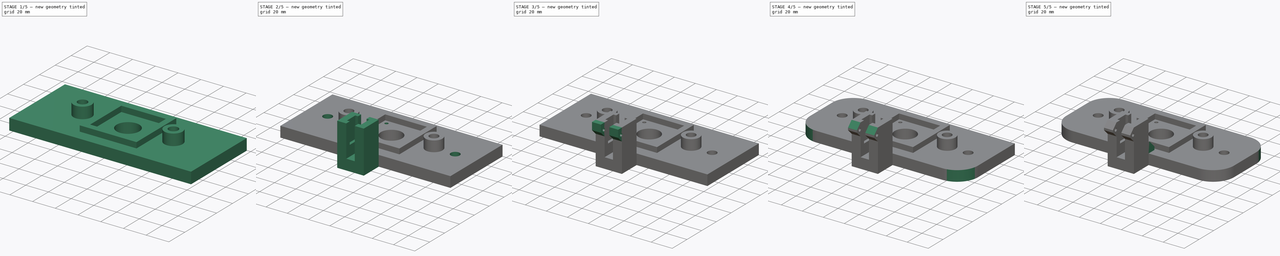
[diagram: build sequence overview — one tinted view per stage of 5, left to right]
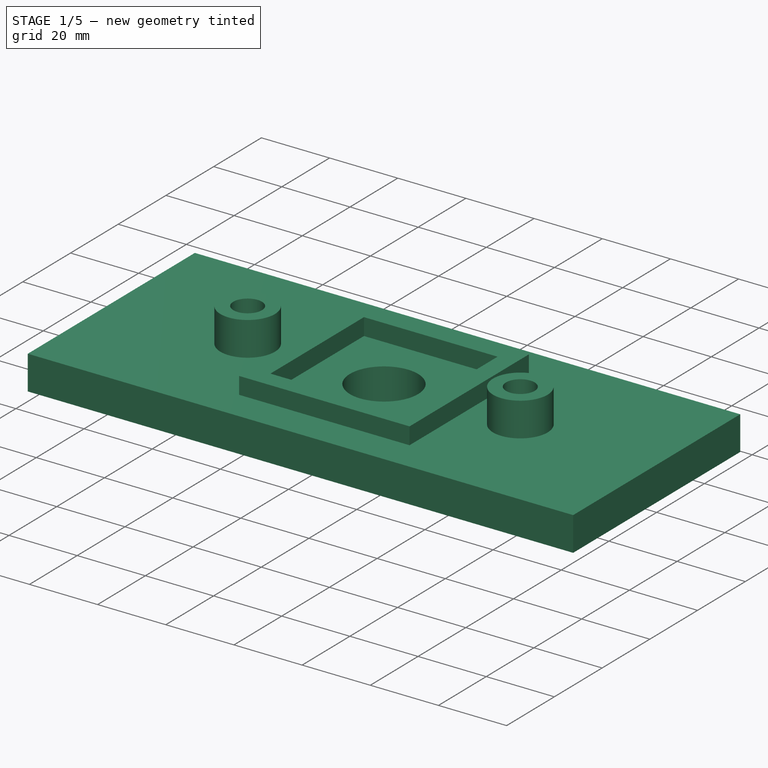
[diagram: stage 1 of 5 — iso view after this stage's code; geometry added in this stage tinted green]
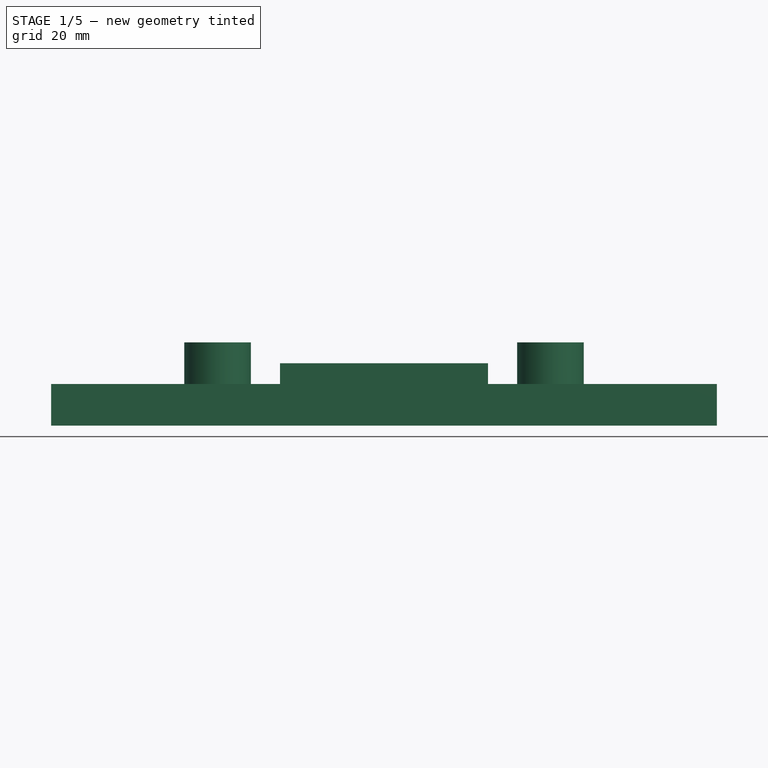
[diagram: stage 1 of 5 — front view after this stage's code; geometry added in this stage tinted green]
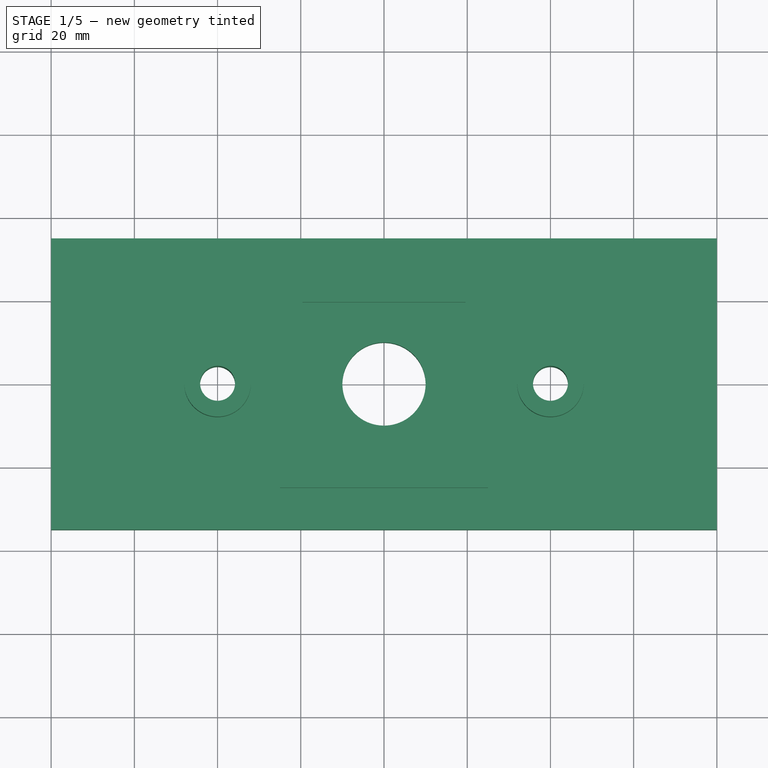
[diagram: stage 1 of 5 — top view after this stage's code; geometry added in this stage tinted green]
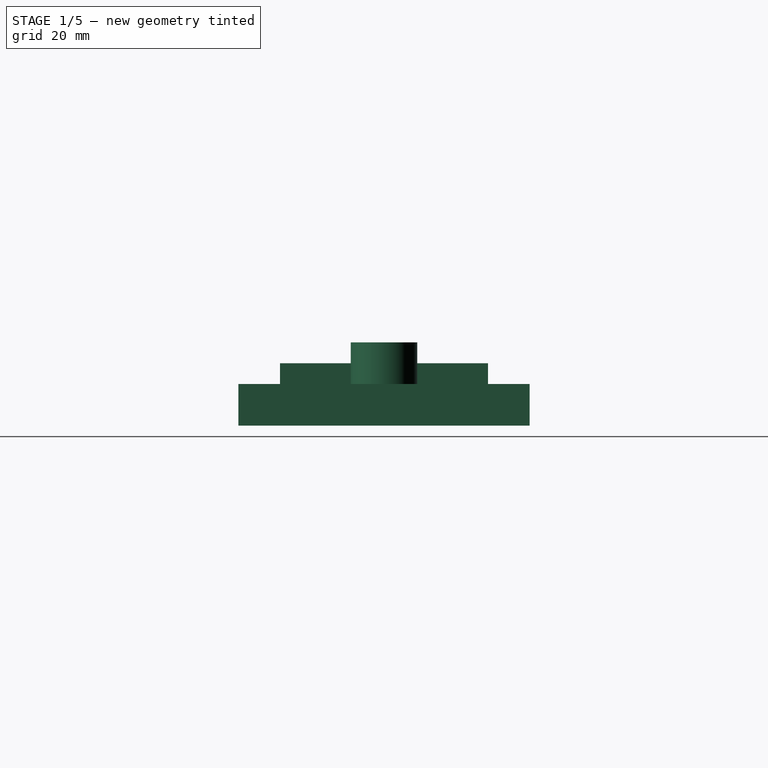
[diagram: stage 1 of 5 — right view after this stage's code; geometry added in this stage tinted green]
FCSTD DOCUMENT  (FreeCAD 0.18R16117 (Git))
Label: TCM2 - SuppMotore
License: All rights reserved
LicenseURL: http://en.wikipedia.org/wiki/All_rights_reserved
objects: Sketcher::SketchObject×14, PartDesign::Pad×7, PartDesign::Pocket×7, PartDesign::Chamfer×6, PartDesign::Fillet×4, PartDesign::Body×1
note: 53 computed .brp shape members not serialized (recipe doc carries the construction recipe); baked Part::Feature solids carry a one-line shape summary decoded from their .brp

FEATURE [Sketcher::SketchObject] Sketch
  MapMode = 5
  Support = -> [XY_Plane]
  sketch-geometry (4):
    g0: LineSegment StartX=-80 StartY=35 StartZ=0 EndX=80 EndY=35 EndZ=0
    g1: LineSegment StartX=80 StartY=35 StartZ=0 EndX=80 EndY=-35 EndZ=0
    g2: LineSegment StartX=80 StartY=-35 StartZ=0 EndX=-80 EndY=-35 EndZ=0
    g3: LineSegment StartX=-80 StartY=-35 StartZ=0 EndX=-80 EndY=35 EndZ=0
  constraints (12):
    c: Coincident(g0,g1)
    c: Coincident(g1,g2)
    c: Coincident(g2,g3)
    c: Coincident(g3,g0)
    c: Horizontal(g0)
    c: Horizontal(g2)
    c: Vertical(g1)
    c: Vertical(g3)
    c: Distance(g1) = 70
    c: Distance(g0) = 160
    c: DistanceX(g-1,g0) = 80
    c: DistanceY(g-1,g0) = 35
FEATURE [PartDesign::Pad] Pad
  Length = 10
  Length2 = 100
  Profile = -> Sketch
  Type = 0
FEATURE [Sketcher::SketchObject] Sketch001
  MapMode = 5
  Placement = pos=(0,0,10) rot=(0,0,1;0rad)
  Support = -> [Pad]
  sketch-geometry (1):
    g0: Circle CenterX=0 CenterY=0 CenterZ=0 NormalX=0 NormalY=0 NormalZ=1 AngleXU=0 Radius=10
  constraints (2):
    c: Coincident(g0,g-1)
    c: Radius(g0) = 10
FEATURE [PartDesign::Pocket] Pocket
  BaseFeature = -> Pad
  Length = 10
  Length2 = 100
  Profile = -> Sketch001
  Type = 0
FEATURE [Sketcher::SketchObject] Sketch002
  MapMode = 5
  Placement = pos=(0,0,10) rot=(0,0,1;0rad)
  Support = -> [Pocket]
  sketch-geometry (2):
    g0: Circle CenterX=-40 CenterY=0 CenterZ=0 NormalX=0 NormalY=0 NormalZ=1 AngleXU=0 Radius=8
    g1: Circle CenterX=40 CenterY=0 CenterZ=0 NormalX=0 NormalY=0 NormalZ=1 AngleXU=0 Radius=8
  constraints (6):
    c: PointOnObject(g1,g-1)
    c: PointOnObject(g0,g-1)
    c: Radius(g1) = 8
    c: Radius(g0) = 8
    c: DistanceX(g0,g-1) = 40
    c: DistanceX(g-1,g1) = 40
FEATURE [PartDesign::Pad] Pad001
  BaseFeature = -> Pocket
  Length = 10
  Length2 = 100
  Profile = -> Sketch002
  Type = 0
FEATURE [Sketcher::SketchObject] Sketch003
  MapMode = 5
  Placement = pos=(0,0,20) rot=(0,0,1;0rad)
  Support = -> [Pad001]
  sketch-geometry (2):
    g0: Circle CenterX=-40 CenterY=0 CenterZ=0 NormalX=0 NormalY=0 NormalZ=1 AngleXU=0 Radius=4.2
    g1: Circle CenterX=40 CenterY=0 CenterZ=0 NormalX=0 NormalY=0 NormalZ=1 AngleXU=0 Radius=4.2
  constraints (6):
    c: PointOnObject(g1,g-1)
    c: PointOnObject(g0,g-1)
    c: Radius(g0) = 4.2
    c: Radius(g1) = 4.2
    c: DistanceX(g0,g-1) = 40
    c: DistanceX(g-1,g1) = 40
FEATURE [PartDesign::Pocket] Pocket001
  BaseFeature = -> Pad001
  Length = 20
  Length2 = 100
  Profile = -> Sketch003
  Type = 0
FEATURE [Sketcher::SketchObject] Sketch004
  MapMode = 5
  Placement = pos=(0,0,10) rot=(0,0,1;0rad)
  Support = -> [Pocket001]
  sketch-geometry (8):
    g0: LineSegment StartX=-25 StartY=25 StartZ=0 EndX=25 EndY=25 EndZ=0
    g1: LineSegment StartX=25 StartY=25 StartZ=0 EndX=25 EndY=-25 EndZ=0
    g2: LineSegment StartX=25 StartY=-25 StartZ=0 EndX=-25 EndY=-25 EndZ=0
    g3: LineSegment StartX=-25 StartY=-25 StartZ=0 EndX=-25 EndY=25 EndZ=0
    g4: LineSegment StartX=-19.6 StartY=19.6 StartZ=0 EndX=19.6 EndY=19.6 EndZ=0
    g5: LineSegment StartX=19.6 StartY=19.6 StartZ=0 EndX=19.6 EndY=-19.6 EndZ=0
    g6: LineSegment StartX=19.6 StartY=-19.6 StartZ=0 EndX=-19.6 EndY=-19.6 EndZ=0
    g7: LineSegment StartX=-19.6 StartY=-19.6 StartZ=0 EndX=-19.6 EndY=19.6 EndZ=0
  constraints (24):
    c: Coincident(g0,g1)
    c: Coincident(g1,g2)
    c: Coincident(g2,g3)
    c: Coincident(g3,g0)
    c: Horizontal(g0)
    c: Horizontal(g2)
    c: Vertical(g1)
    c: Vertical(g3)
    c: Distance(g1) = 50
    c: Distance(g0) = 50
    c: DistanceX(g-1,g0) = 25
    c: DistanceY(g-1,g0) = 25
    c: Coincident(g4,g5)
    c: Coincident(g5,g6)
    c: Coincident(g6,g7)
    c: Coincident(g7,g4)
    c: Horizontal(g4)
    c: Horizontal(g6)
    c: Vertical(g5)
    c: Vertical(g7)
    c: Distance(g4) = 39.2
    c: Distance(g5) = 39.2
    c: DistanceX(g6,g-1) = 19.6
    c: DistanceY(g-1,g4) = 19.6
FEATURE [PartDesign::Pad] Pad002
  BaseFeature = -> Pocket001
  Length = 5
  Length2 = 100
  Profile = -> Sketch004
  Type = 0
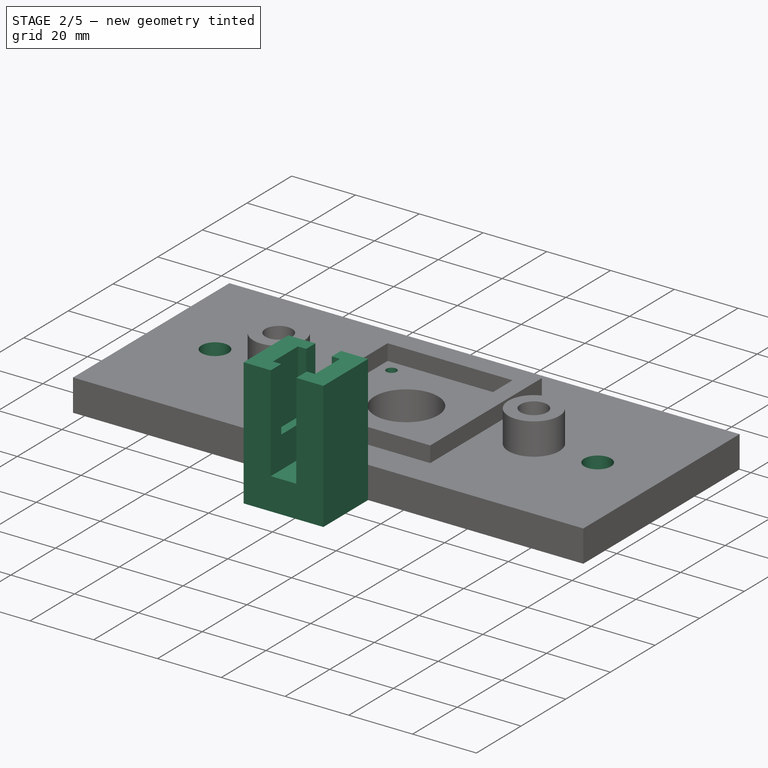
[diagram: stage 2 of 5 — iso view after this stage's code; geometry added in this stage tinted green]
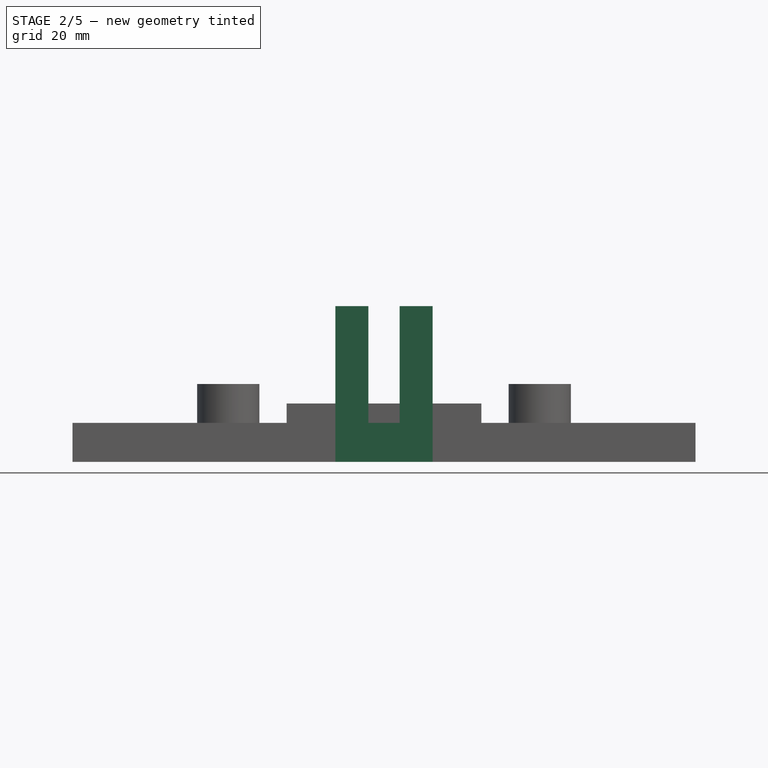
[diagram: stage 2 of 5 — front view after this stage's code; geometry added in this stage tinted green]
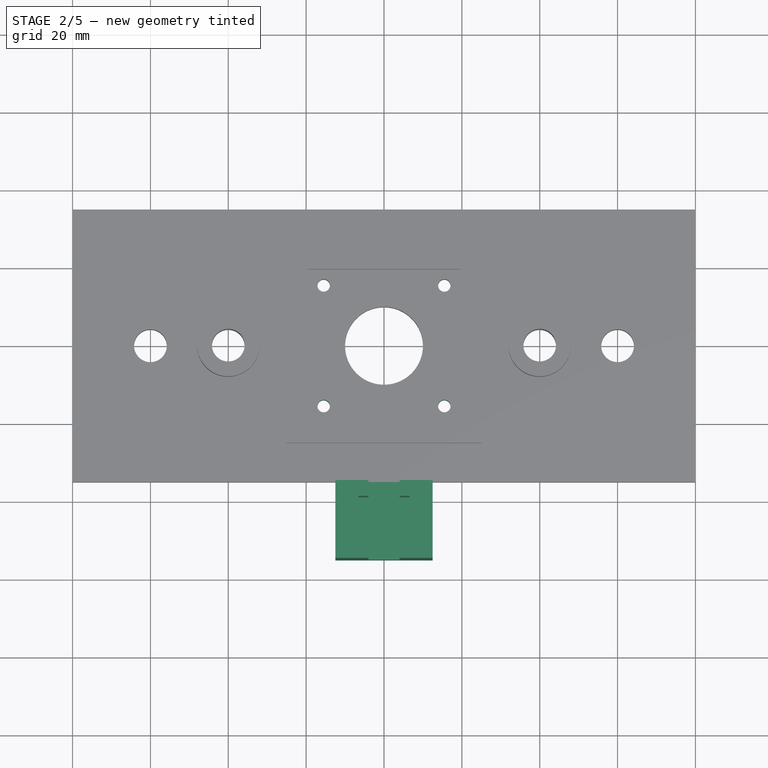
[diagram: stage 2 of 5 — top view after this stage's code; geometry added in this stage tinted green]
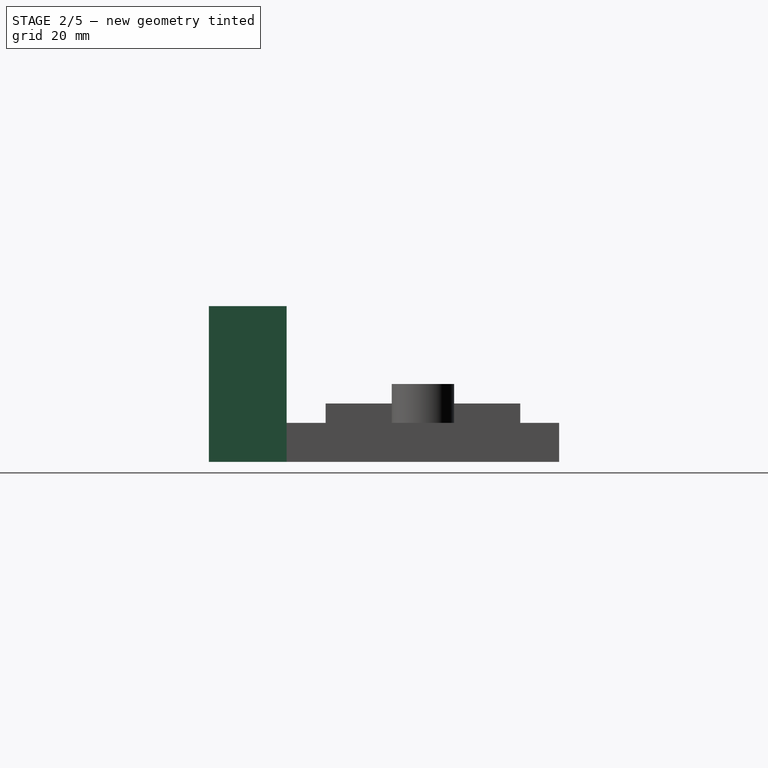
[diagram: stage 2 of 5 — right view after this stage's code; geometry added in this stage tinted green]
FEATURE [Sketcher::SketchObject] Sketch005
  MapMode = 5
  Placement = pos=(0,0,10) rot=(0,0,1;0rad)
  Support = -> [Pad002]
  sketch-geometry (4):
    g0: Circle CenterX=-15.5 CenterY=15.5 CenterZ=0 NormalX=0 NormalY=0 NormalZ=1 AngleXU=0 Radius=1.6
    g1: Circle CenterX=15.5 CenterY=15.5 CenterZ=0 NormalX=0 NormalY=0 NormalZ=1 AngleXU=0 Radius=1.6
    g2: Circle CenterX=-15.5 CenterY=-15.5 CenterZ=0 NormalX=0 NormalY=0 NormalZ=1 AngleXU=0 Radius=1.6
    g3: Circle CenterX=15.5 CenterY=-15.5 CenterZ=0 NormalX=0 NormalY=0 NormalZ=1 AngleXU=0 Radius=1.6
  constraints (12):
    c: Radius(g1) = 1.6
    c: Radius(g3) = 1.6
    c: Radius(g2) = 1.6
    c: Radius(g0) = 1.6
    c: DistanceY(g3,g1) = 31
    c: DistanceY(g2,g0) = 31
    c: DistanceX(g0,g1) = 31
    c: DistanceX(g2,g3) = 31
    c: DistanceY(g-1,g1) = 15.5
    c: DistanceY(g-1,g0) = 15.5
    c: DistanceX(g-1,g1) = 15.5
    c: DistanceX(g-1,g3) = 15.5
FEATURE [PartDesign::Pocket] Pocket002
  BaseFeature = -> Pad002
  Length = 10
  Length2 = 100
  Profile = -> Sketch005
  Type = 0
FEATURE [Sketcher::SketchObject] Sketch006
  MapMode = 5
  Placement = pos=(0,0,10) rot=(0,0,1;0rad)
  Support = -> [Pocket002]
  sketch-geometry (2):
    g0: Circle CenterX=-60 CenterY=0 CenterZ=0 NormalX=0 NormalY=0 NormalZ=1 AngleXU=0 Radius=4.2
    g1: Circle CenterX=60 CenterY=0 CenterZ=0 NormalX=0 NormalY=0 NormalZ=1 AngleXU=0 Radius=4.2
  constraints (6):
    c: PointOnObject(g1,g-1)
    c: PointOnObject(g0,g-1)
    c: Radius(g0) = 4.2
    c: Radius(g1) = 4.2
    c: DistanceX(g0,g-1) = 60
    c: DistanceX(g-1,g1) = 60
FEATURE [PartDesign::Pocket] Pocket003
  BaseFeature = -> Pocket002
  Length = 10
  Length2 = 100
  Profile = -> Sketch006
  Type = 0
FEATURE [Sketcher::SketchObject] Sketch007
  MapMode = 5
  Placement = pos=(0,0,0) rot=(1,0,0;3.14159rad)
  Support = -> [Pocket003]
  sketch-geometry (4):
    g0: LineSegment StartX=-12.5 StartY=35 StartZ=0 EndX=12.5 EndY=35 EndZ=0
    g1: LineSegment StartX=12.5 StartY=35 StartZ=0 EndX=12.5 EndY=55 EndZ=0
    g2: LineSegment StartX=12.5 StartY=55 StartZ=0 EndX=-12.5 EndY=55 EndZ=0
    g3: LineSegment StartX=-12.5 StartY=55 StartZ=0 EndX=-12.5 EndY=35 EndZ=0
  constraints (12):
    c: Coincident(g0,g1)
    c: Coincident(g1,g2)
    c: Coincident(g2,g3)
    c: Coincident(g3,g0)
    c: Horizontal(g0)
    c: Horizontal(g2)
    c: Vertical(g1)
    c: Vertical(g3)
    c: Distance(g1) = 20
    c: Distance(g0) = 25
    c: DistanceX(g0,g-1) = 12.5
    c: DistanceY(g-1,g0) = 35
FEATURE [PartDesign::Pad] Pad003
  BaseFeature = -> Pocket003
  Length = 40
  Length2 = 100
  Profile = -> Sketch007
  Reversed = true
  Type = 0
FEATURE [Sketcher::SketchObject] Sketch008
  MapMode = 5
  Placement = pos=(0,0,40) rot=(0,0,1;0rad)
  Support = -> [Pad003]
  sketch-geometry (4):
    g0: LineSegment StartX=-4 StartY=-35 StartZ=0 EndX=4 EndY=-35 EndZ=0
    g1: LineSegment StartX=4 StartY=-35 StartZ=0 EndX=4 EndY=-55 EndZ=0
    g2: LineSegment StartX=4 StartY=-55 StartZ=0 EndX=-4 EndY=-55 EndZ=0
    g3: LineSegment StartX=-4 StartY=-55 StartZ=0 EndX=-4 EndY=-35 EndZ=0
  constraints (12):
    c: Coincident(g0,g1)
    c: Coincident(g1,g2)
    c: Coincident(g2,g3)
    c: Coincident(g3,g0)
    c: Horizontal(g0)
    c: Horizontal(g2)
    c: Vertical(g1)
    c: Vertical(g3)
    c: Distance(g1) = 20
    c: Distance(g0) = 8
    c: DistanceX(g0,g-1) = 4
    c: DistanceY(g0,g-1) = 35
FEATURE [PartDesign::Pocket] Pocket004
  BaseFeature = -> Pad003
  Length = 30
  Length2 = 100
  Profile = -> Sketch008
  Type = 0
FEATURE [Sketcher::SketchObject] Sketch009
  MapMode = 5
  Placement = pos=(0,0,40) rot=(0,0,1;0rad)
  Support = -> [Pocket004]
  sketch-geometry (4):
    g0: LineSegment StartX=-6.6 StartY=-39.1 StartZ=0 EndX=6.6 EndY=-39.1 EndZ=0
    g1: LineSegment StartX=6.6 StartY=-39.1 StartZ=0 EndX=6.6 EndY=-50.3 EndZ=0
    g2: LineSegment StartX=6.6 StartY=-50.3 StartZ=0 EndX=-6.6 EndY=-50.3 EndZ=0
    g3: LineSegment StartX=-6.6 StartY=-50.3 StartZ=0 EndX=-6.6 EndY=-39.1 EndZ=0
  constraints (12):
    c: Coincident(g0,g1)
    c: Coincident(g1,g2)
    c: Coincident(g2,g3)
    c: Coincident(g3,g0)
    c: Horizontal(g0)
    c: Horizontal(g2)
    c: Vertical(g1)
    c: Vertical(g3)
    c: Distance(g2) = 13.2
    c: Distance(g1) = 11.2
    c: DistanceX(g0,g-1) = 6.6
    c: DistanceY(g0,g-1) = 39.1
FEATURE [PartDesign::Pocket] Pocket005
  BaseFeature = -> Pocket004
  Length = 20
  Length2 = 100
  Profile = -> Sketch009
  Type = 0
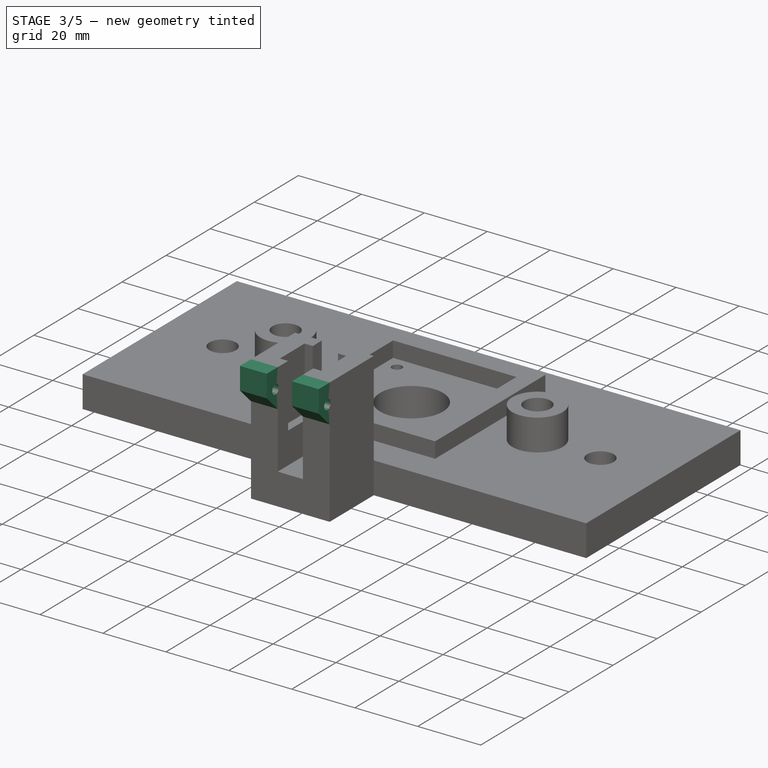
[diagram: stage 3 of 5 — iso view after this stage's code; geometry added in this stage tinted green]
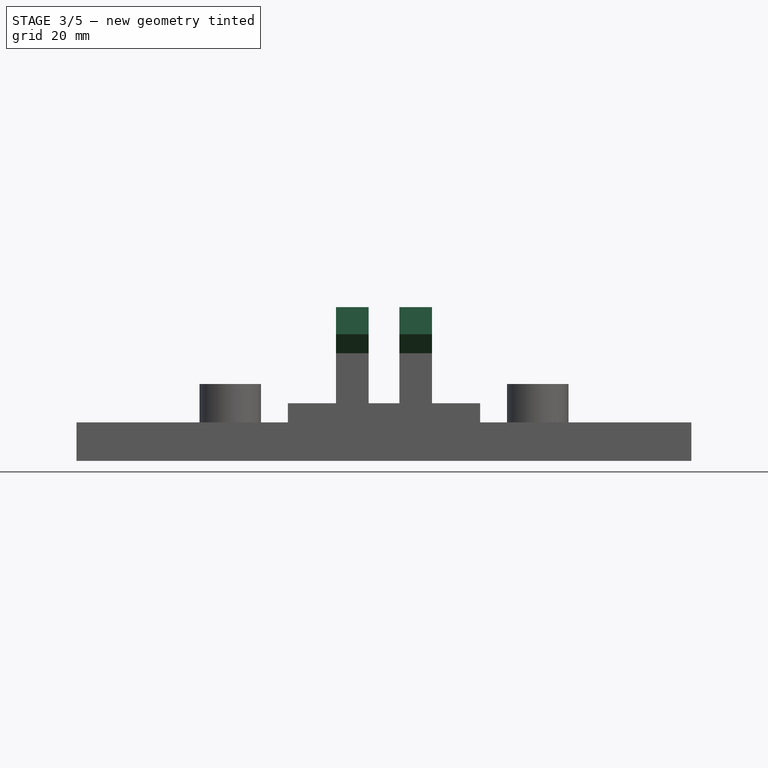
[diagram: stage 3 of 5 — front view after this stage's code; geometry added in this stage tinted green]
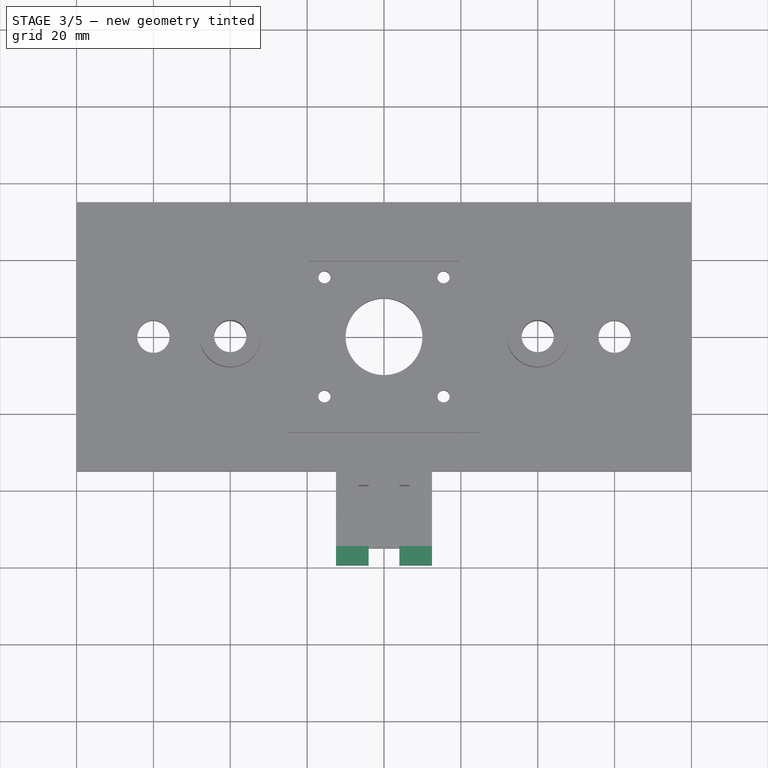
[diagram: stage 3 of 5 — top view after this stage's code; geometry added in this stage tinted green]
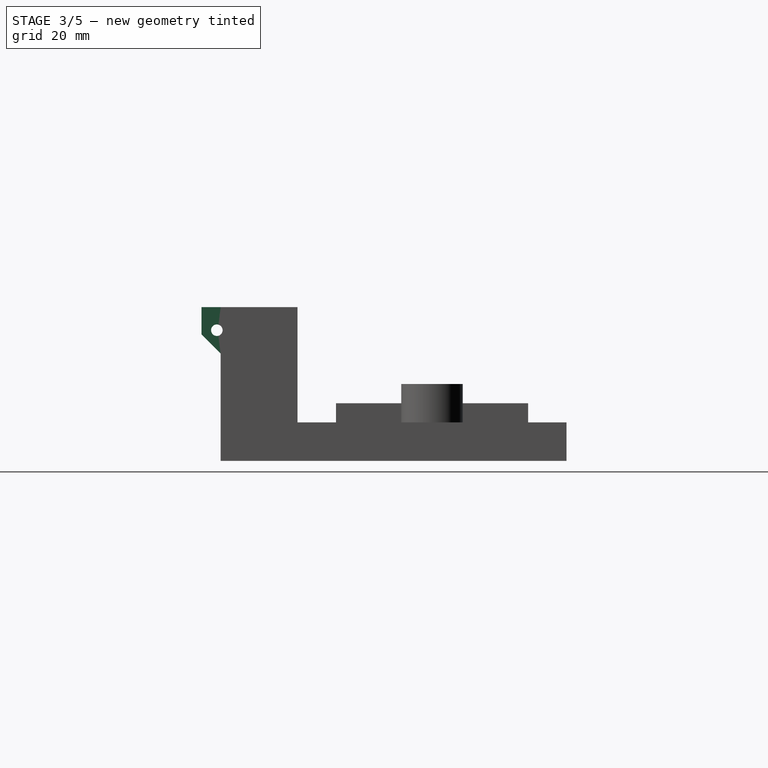
[diagram: stage 3 of 5 — right view after this stage's code; geometry added in this stage tinted green]
FEATURE [Sketcher::SketchObject] Sketch010
  MapMode = 5
  Placement = pos=(0,-55,0) rot=(1,0,0;1.5708rad)
  Support = -> [Pocket005]
  sketch-geometry (8):
    g0: LineSegment StartX=-12.5 StartY=40 StartZ=0 EndX=-4 EndY=40 EndZ=0
    g1: LineSegment StartX=-4 StartY=40 StartZ=0 EndX=-4 EndY=28 EndZ=0
    g2: LineSegment StartX=-4 StartY=28 StartZ=0 EndX=-12.5 EndY=28 EndZ=0
    g3: LineSegment StartX=-12.5 StartY=28 StartZ=0 EndX=-12.5 EndY=40 EndZ=0
    g4: LineSegment StartX=4 StartY=40 StartZ=0 EndX=12.5 EndY=40 EndZ=0
    g5: LineSegment StartX=12.5 StartY=40 StartZ=0 EndX=12.5 EndY=28 EndZ=0
    g6: LineSegment StartX=12.5 StartY=28 StartZ=0 EndX=4 EndY=28 EndZ=0
    g7: LineSegment StartX=4 StartY=28 StartZ=0 EndX=4 EndY=40 EndZ=0
  constraints (24):
    c: Coincident(g0,g1)
    c: Coincident(g1,g2)
    c: Coincident(g2,g3)
    c: Coincident(g3,g0)
    c: Horizontal(g0)
    c: Horizontal(g2)
    c: Vertical(g1)
    c: Vertical(g3)
    c: Coincident(g4,g5)
    c: Coincident(g5,g6)
    c: Coincident(g6,g7)
    c: Coincident(g7,g4)
    c: Horizontal(g4)
    c: Horizontal(g6)
    c: Vertical(g5)
    c: Vertical(g7)
    c: Distance(g0) = 8.5
    c: Distance(g4) = 8.5
    c: Distance(g5) = 12
    c: Distance(g1) = 12
    c: DistanceY(g-1,g0) = 40
    c: DistanceY(g-1,g4) = 40
    c: DistanceX(g0,g4) = 8
    c: DistanceX(g0,g-1) = 4
FEATURE [PartDesign::Pad] Pad004
  BaseFeature = -> Pocket005
  Length = 5
  Length2 = 100
  Profile = -> Sketch010
  Type = 0
FEATURE [Sketcher::SketchObject] Sketch011
  MapMode = 5
  Placement = pos=(12.5,0,0) rot=(0.57735,0.57735,0.57735;2.0944rad)
  Support = -> [Pad004]
  sketch-geometry (1):
    g0: Circle CenterX=-56 CenterY=34 CenterZ=0 NormalX=0 NormalY=0 NormalZ=1 AngleXU=0 Radius=1.5
  constraints (3):
    c: Radius(g0) = 1.5
    c: DistanceX(g0,g-1) = 56
    c: DistanceY(g-1,g0) = 34
FEATURE [PartDesign::Pocket] Pocket006
  BaseFeature = -> Pad004
  Length = 25
  Length2 = 100
  Profile = -> Sketch011
  Type = 0
FEATURE [PartDesign::Chamfer] Chamfer
  Base = -> Pocket006 [Edge143]
  BaseFeature = -> Pocket006
  Size = 4.95
FEATURE [PartDesign::Chamfer] Chamfer001
  Base = -> Chamfer [Edge62]
  BaseFeature = -> Chamfer
  Size = 4.95
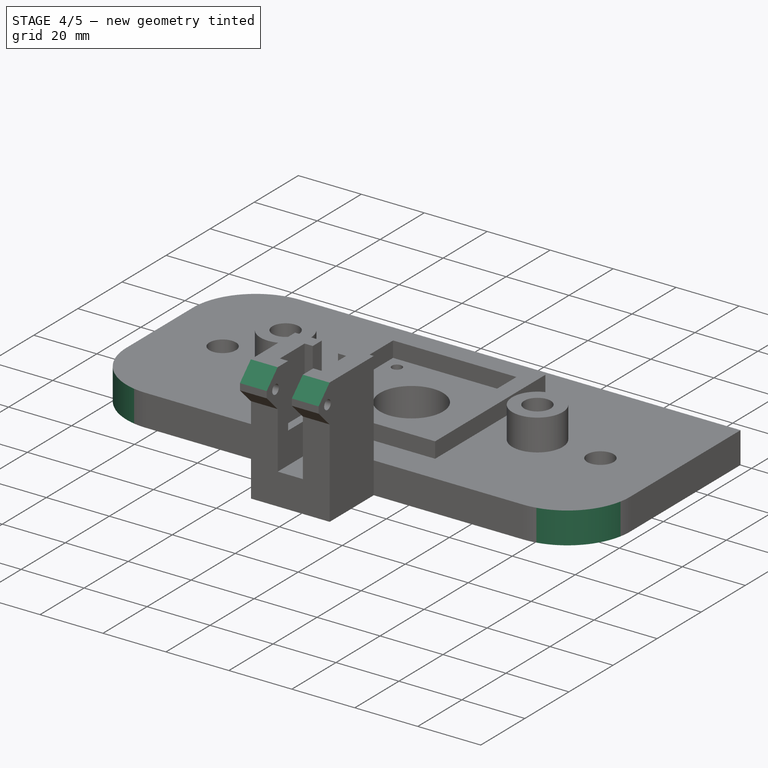
[diagram: stage 4 of 5 — iso view after this stage's code; geometry added in this stage tinted green]
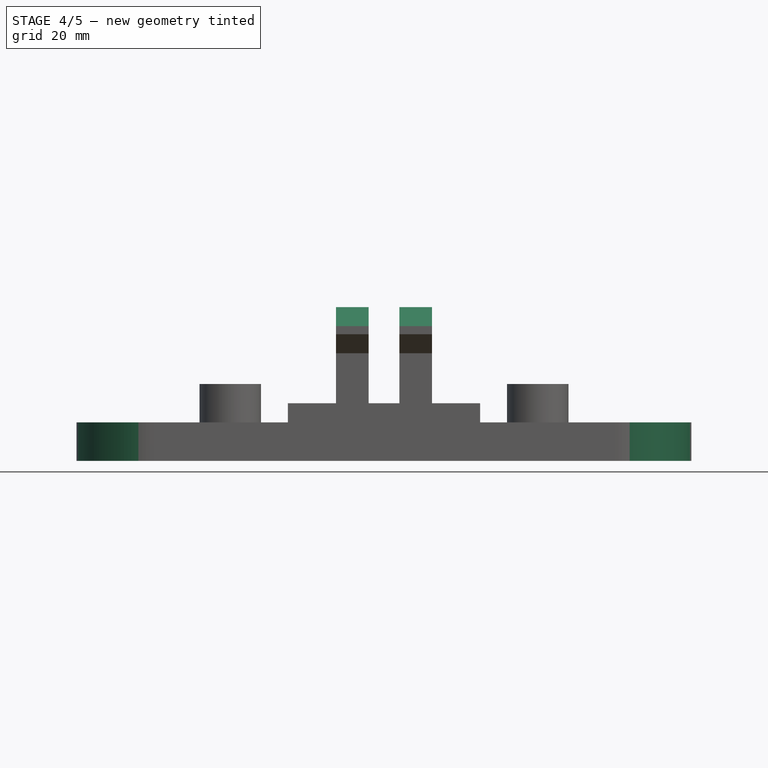
[diagram: stage 4 of 5 — front view after this stage's code; geometry added in this stage tinted green]
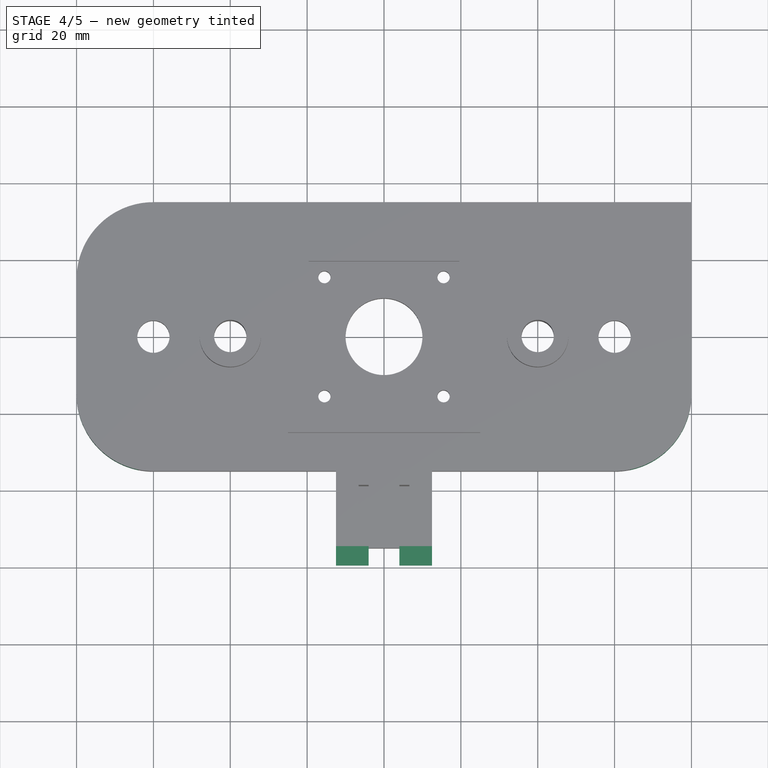
[diagram: stage 4 of 5 — top view after this stage's code; geometry added in this stage tinted green]
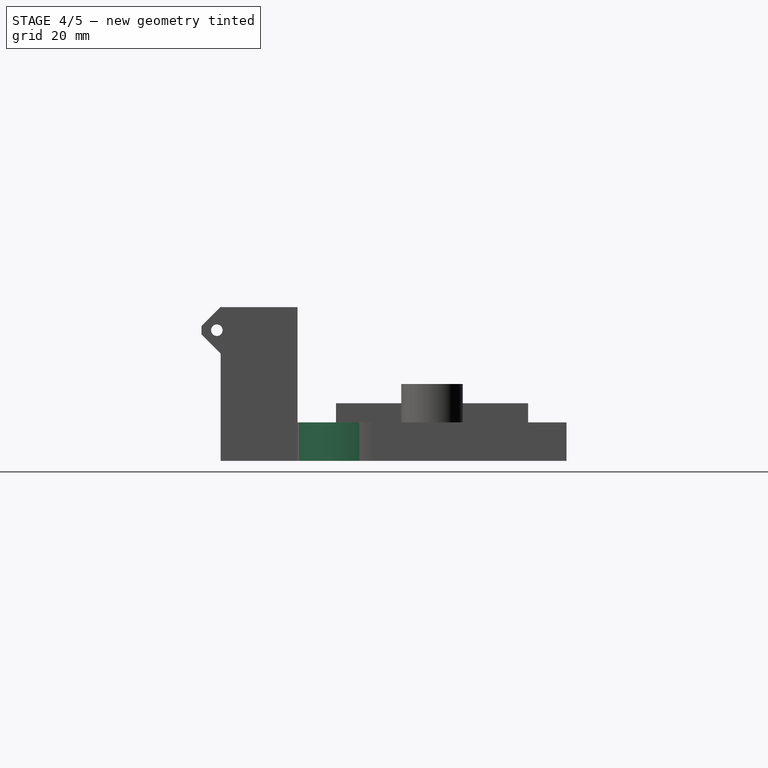
[diagram: stage 4 of 5 — right view after this stage's code; geometry added in this stage tinted green]
FEATURE [PartDesign::Chamfer] Chamfer002
  Base = -> Chamfer001 [Edge157]
  BaseFeature = -> Chamfer001
  Size = 4.95
FEATURE [PartDesign::Chamfer] Chamfer003
  Base = -> Chamfer002 [Edge160]
  BaseFeature = -> Chamfer002
  Size = 4.95
FEATURE [PartDesign::Fillet] Fillet
  Base = -> Chamfer003 [Edge48]
  BaseFeature = -> Chamfer003
  Radius = 20
FEATURE [PartDesign::Fillet] Fillet001
  Base = -> Fillet [Edge45]
  BaseFeature = -> Fillet
  Radius = 20
FEATURE [PartDesign::Fillet] Fillet002
  Base = -> Fillet001 [Edge29]
  BaseFeature = -> Fillet001
  Radius = 20
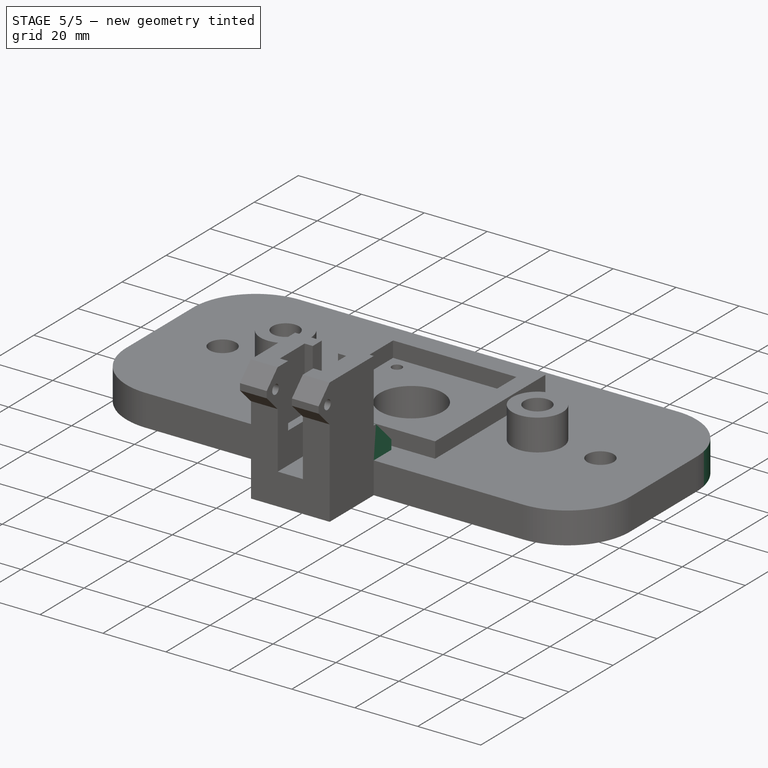
[diagram: stage 5 of 5 — iso view after this stage's code; geometry added in this stage tinted green]
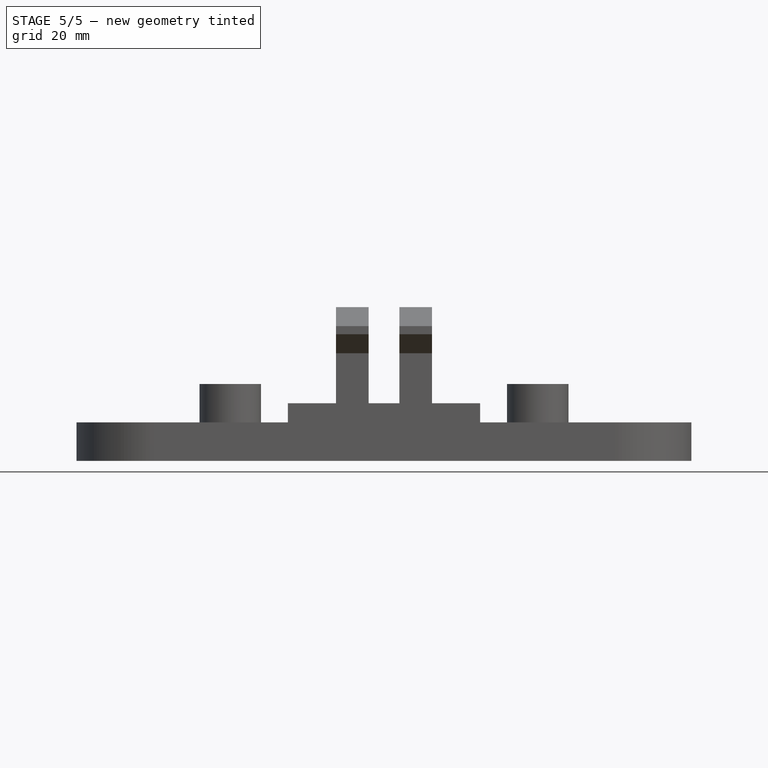
[diagram: stage 5 of 5 — front view after this stage's code; geometry added in this stage tinted green]
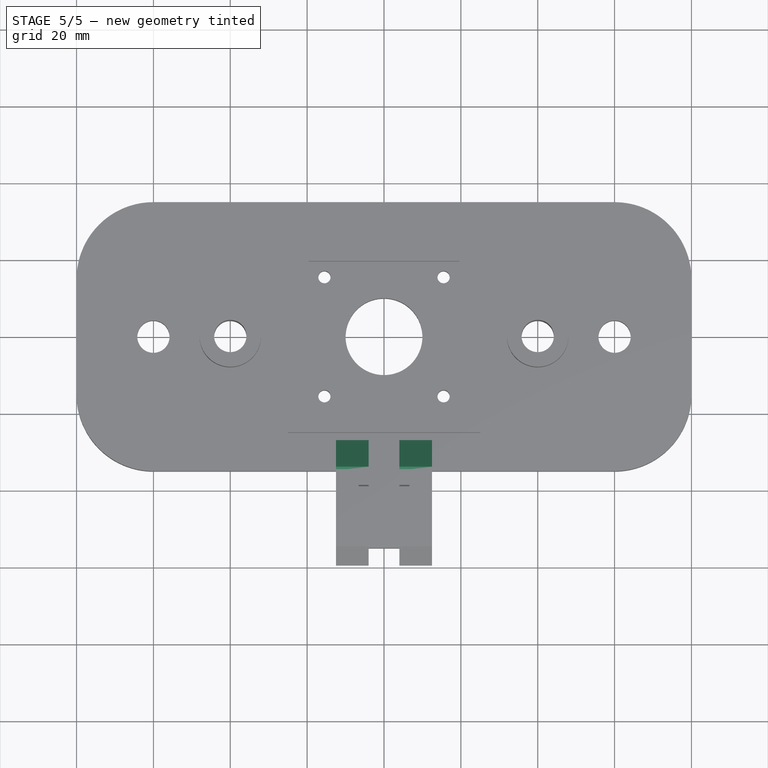
[diagram: stage 5 of 5 — top view after this stage's code; geometry added in this stage tinted green]
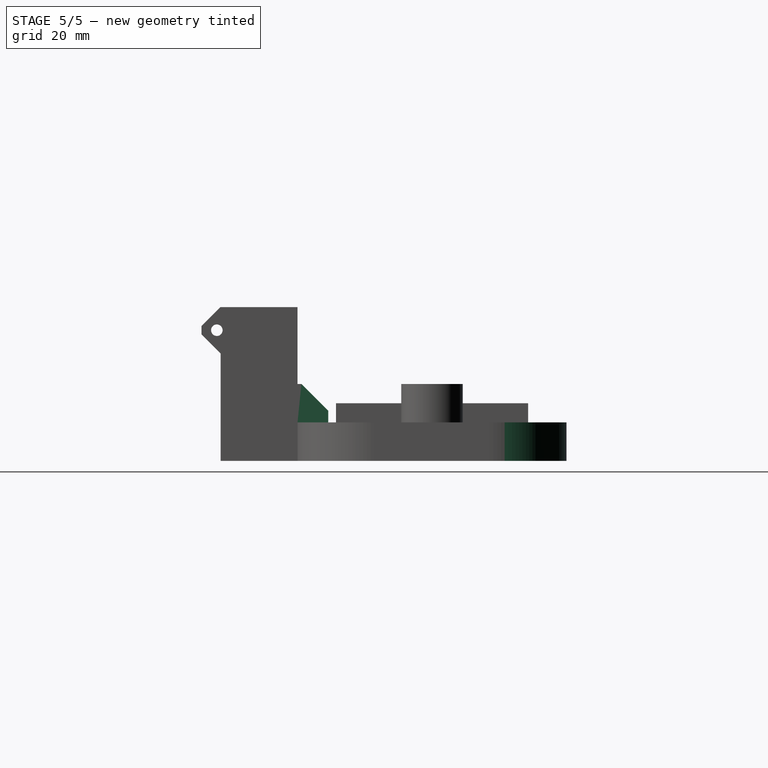
[diagram: stage 5 of 5 — right view after this stage's code; geometry added in this stage tinted green]
FEATURE [PartDesign::Fillet] Fillet003
  Base = -> Fillet002 [Edge20]
  BaseFeature = -> Fillet002
  Radius = 20
FEATURE [Sketcher::SketchObject] Sketch012
  MapMode = 5
  Placement = pos=(12.5,0,0) rot=(0.57735,0.57735,0.57735;2.0944rad)
  Support = -> [Fillet003]
  sketch-geometry (4):
    g0: LineSegment StartX=-35 StartY=20 StartZ=0 EndX=-27 EndY=20 EndZ=0
    g1: LineSegment StartX=-27 StartY=20 StartZ=0 EndX=-27 EndY=10 EndZ=0
    g2: LineSegment StartX=-27 StartY=10 StartZ=0 EndX=-35 EndY=10 EndZ=0
    g3: LineSegment StartX=-35 StartY=10 StartZ=0 EndX=-35 EndY=20 EndZ=0
  constraints (12):
    c: Coincident(g0,g1)
    c: Coincident(g1,g2)
    c: Coincident(g2,g3)
    c: Coincident(g3,g0)
    c: Horizontal(g0)
    c: Horizontal(g2)
    c: Vertical(g1)
    c: Vertical(g3)
    c: DistanceY(g-1,g2) = 10
    c: DistanceX(g2,g-1) = 35
    c: Distance(g2) = 8
    c: Distance(g1) = 10
FEATURE [PartDesign::Pad] Pad005
  BaseFeature = -> Fillet003
  Length = 8.5
  Length2 = 100
  Profile = -> Sketch012
  Reversed = true
  Type = 0
FEATURE [Sketcher::SketchObject] Sketch013
  MapMode = 5
  Placement = pos=(-12.5,0,0) rot=(0.57735,-0.57735,-0.57735;2.0944rad)
  Support = -> [Pad005]
  sketch-geometry (4):
    g0: LineSegment StartX=27 StartY=20 StartZ=0 EndX=35 EndY=20 EndZ=0
    g1: LineSegment StartX=35 StartY=20 StartZ=0 EndX=35 EndY=10 EndZ=0
    g2: LineSegment StartX=35 StartY=10 StartZ=0 EndX=27 EndY=10 EndZ=0
    g3: LineSegment StartX=27 StartY=10 StartZ=0 EndX=27 EndY=20 EndZ=0
  constraints (12):
    c: Coincident(g0,g1)
    c: Coincident(g1,g2)
    c: Coincident(g2,g3)
    c: Coincident(g3,g0)
    c: Horizontal(g0)
    c: Horizontal(g2)
    c: Vertical(g1)
    c: Vertical(g3)
    c: DistanceY(g-1,g1) = 10
    c: DistanceX(g-1,g0) = 35
    c: Distance(g3) = 10
    c: Distance(g0) = 8
FEATURE [PartDesign::Pad] Pad006
  BaseFeature = -> Pad005
  Length = 8.5
  Length2 = 100
  Profile = -> Sketch013
  Reversed = true
  Type = 0
FEATURE [PartDesign::Chamfer] Chamfer004
  Base = -> Pad006 [Edge111]
  BaseFeature = -> Pad006
  Size = 7
FEATURE [PartDesign::Chamfer] Chamfer005
  Base = -> Chamfer004 [Edge94]
  BaseFeature = -> Chamfer004
  Size = 7
FEATURE [PartDesign::Body] Body
  Group = -> [Sketch,Pad,Sketch001,Pocket,Sketch002,Pad001,Sketch003,Pocket001,Sketch004,Pad002,Sketch005,Pocket002,Sketch006,Pocket003,Sketch007,Pad003,Sketch008,Pocket004,Sketch009,Pocket005,Sketch010,Pad004,Sketch011,Pocket006,Chamfer,Chamfer001,Chamfer002,Chamfer003,Fillet,Fillet001,Fillet002,Fillet003,Sketch012,Pad005,Sketch013,Pad006,Chamfer004,Chamfer005]
  Origin = -> Origin
  Tip = -> Chamfer005
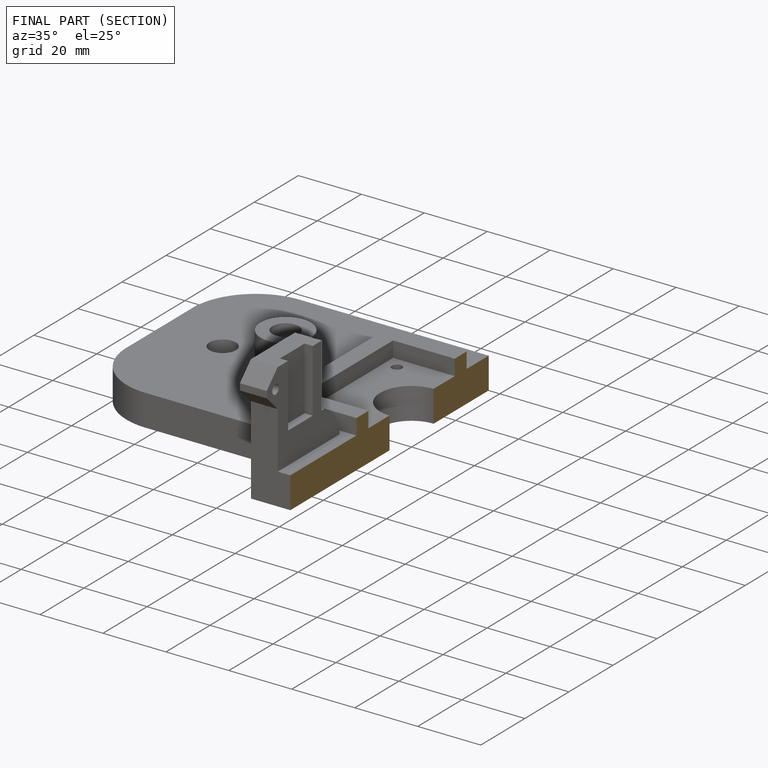
[diagram: finished part — half-section view (interior)]
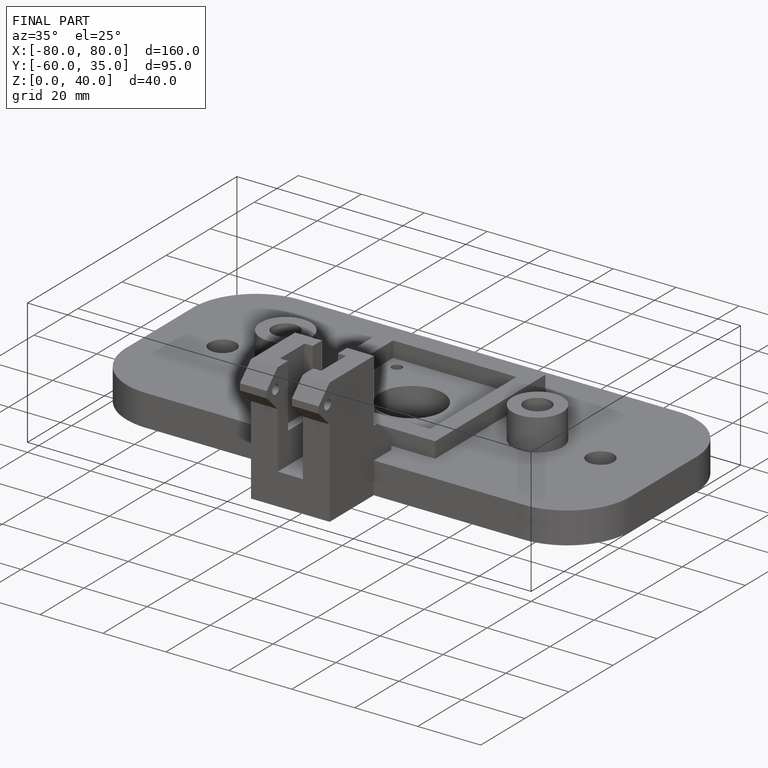
[diagram: finished part — iso view with bounding-box wireframe]
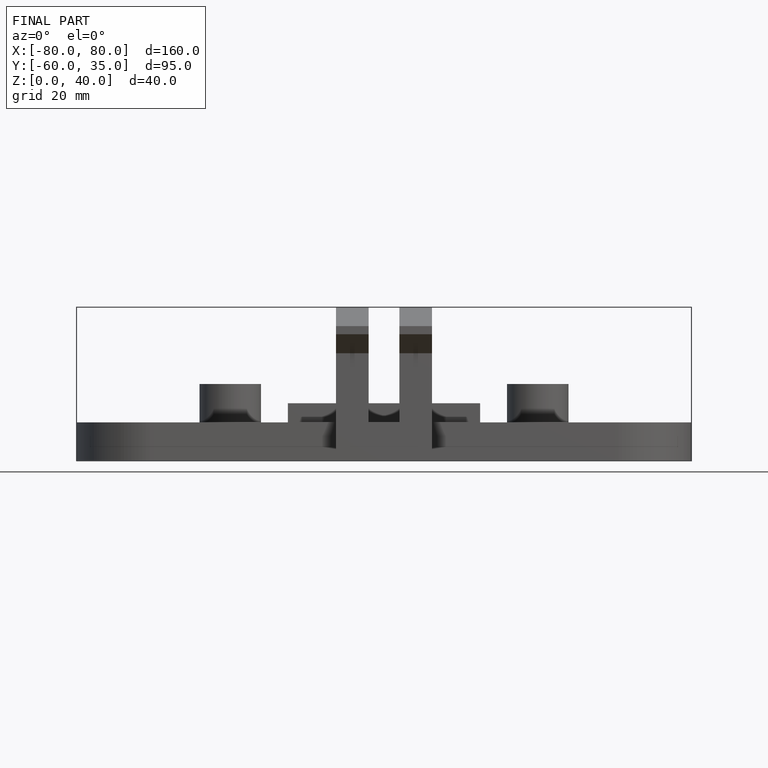
[diagram: finished part — front view with bounding-box wireframe]
